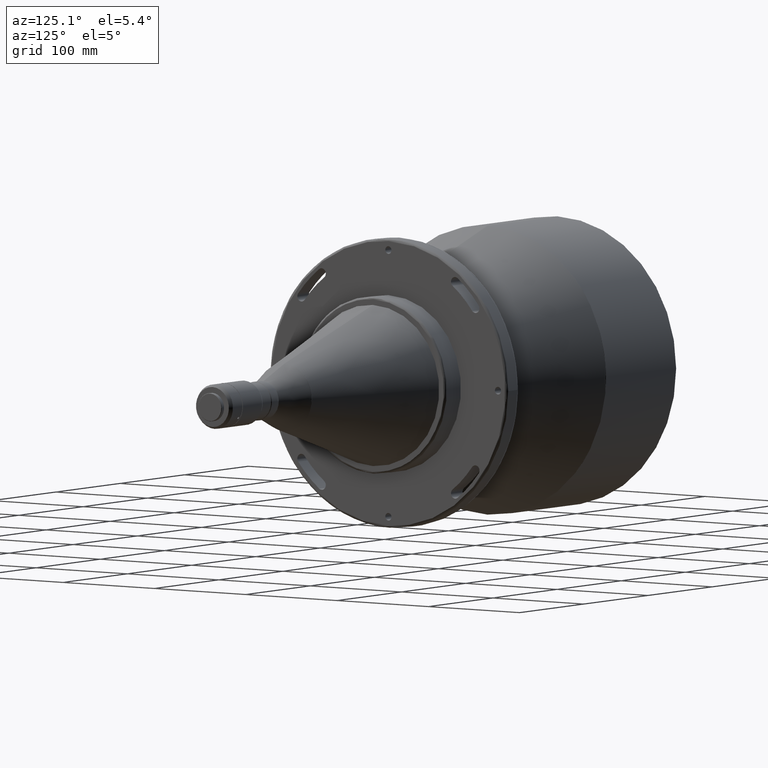
[diagram: clean part render]
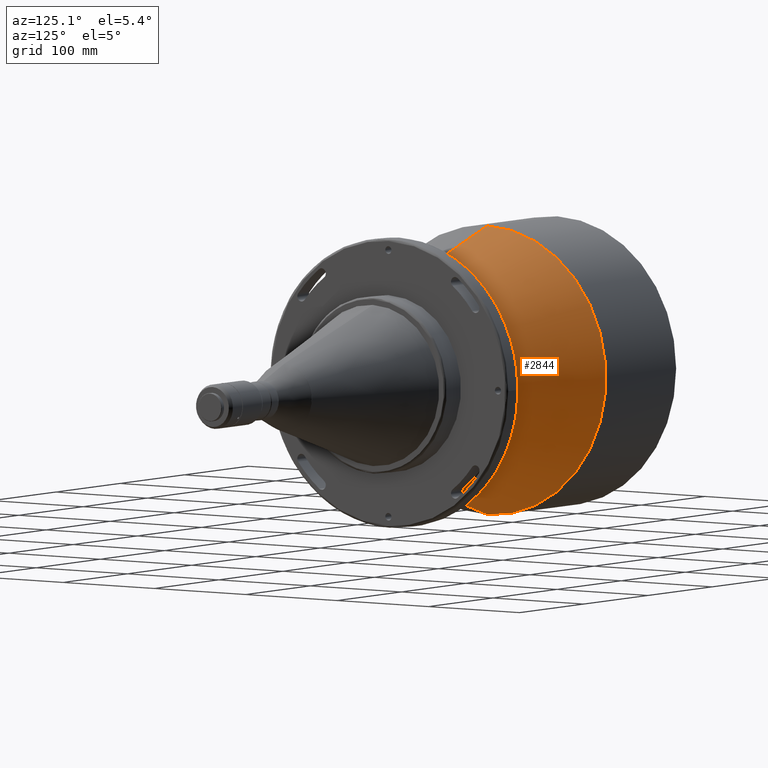
[diagram: same view with one face highlighted and labeled with its STEP entity id]
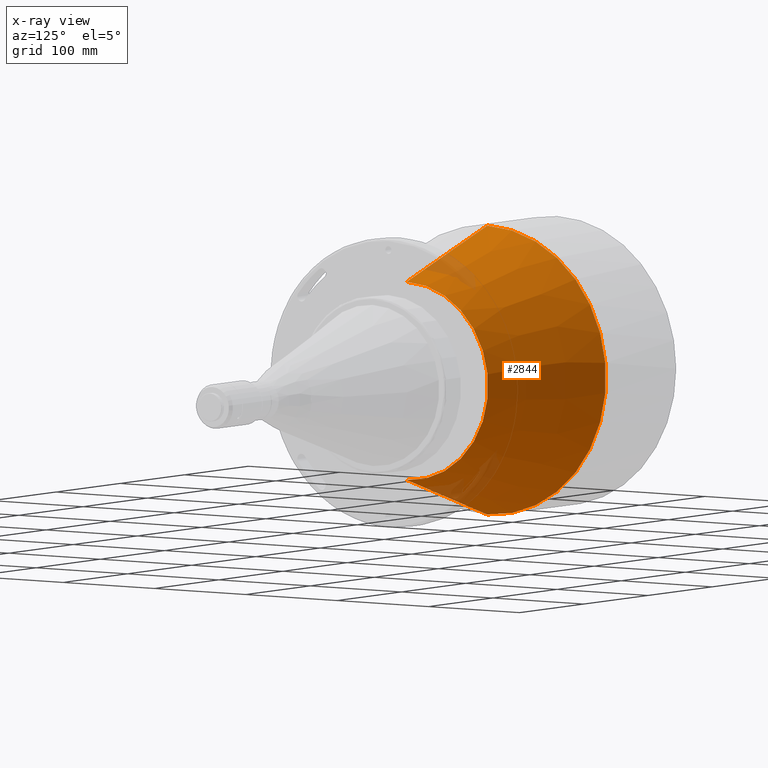
[diagram: x-ray of the same camera — body ghosted, the highlighted face saturated]
A machine part, auxiliary view. The second image highlights one B-rep face of the part: STEP entity #2844.
The next image is the same camera in x-ray: the body ghosted, the highlighted face saturated — about 6% of this face is hidden behind the body in this view.
In plain terms, the highlighted conical surface has half-angle 18 deg.
Its self-contained STEP definition (entity closure, byte-faithful):
#133 = AXIS2_PLACEMENT_3D ( 'NONE', #1319, #2845, #552 ) ;
#155 = VERTEX_POINT ( 'NONE', #2410 ) ;
#339 = VECTOR ( 'NONE', #2035, 1000.000000000000000 ) ;
#376 = DIRECTION ( 'NONE',  ( -0.9510565162952673300, 0.0000000000000000000, 0.3090169943745972900 ) ) ;
#552 = DIRECTION ( 'NONE',  ( 0.0000000000000000000, 0.0000000000000000000, 1.000000000000000000 ) ) ;
#668 = DIRECTION ( 'NONE',  ( -1.000000000000000000, 0.0000000000000000000, 0.0000000000000000000 ) ) ;
#707 = CARTESIAN_POINT ( 'NONE',  ( -35.32213595678278000, 0.0000000000000000000, 0.0000000000000000000 ) ) ;
#752 = EDGE_CURVE ( 'NONE', #785, #1598, #1430, .T. ) ;
#785 = VERTEX_POINT ( 'NONE', #2704 ) ;
#898 = EDGE_LOOP ( 'NONE', ( #923, #2320, #1928, #1627 ) ) ;
#918 = EDGE_CURVE ( 'NONE', #1307, #155, #2067, .T. ) ;
#923 = ORIENTED_EDGE ( 'NONE', *, *, #2579, .T. ) ;
#1059 = CARTESIAN_POINT ( 'NONE',  ( -35.32213595500000700, 0.0000000000000000000, 89.16803578800001200 ) ) ;
#1064 = AXIS2_PLACEMENT_3D ( 'NONE', #1986, #668, #1972 ) ;
#1307 = VERTEX_POINT ( 'NONE', #1738 ) ;
#1319 = CARTESIAN_POINT ( 'NONE',  ( -35.32213595500000700, 0.0000000000000000000, 0.0000000000000000000 ) ) ;
#1430 = LINE ( 'NONE', #1059, #2027 ) ;
#1454 = DIRECTION ( 'NONE',  ( -1.000000000000000000, -3.890908800732188200E-017, 0.0000000000000000000 ) ) ;
#1561 = EDGE_CURVE ( 'NONE', #1598, #155, #2557, .T. ) ;
#1598 = VERTEX_POINT ( 'NONE', #1684 ) ;
#1627 = ORIENTED_EDGE ( 'NONE', *, *, #752, .F. ) ;
#1644 = FACE_OUTER_BOUND ( 'NONE', #898, .T. ) ;
#1684 = CARTESIAN_POINT ( 'NONE',  ( -160.8393674458324900, -5.834388441359496400E-009, 129.9510565161047900 ) ) ;
#1738 = CARTESIAN_POINT ( 'NONE',  ( -35.32213595544570200, -2.743300478114482500E-008, -89.16803578819076400 ) ) ;
#1928 = ORIENTED_EDGE ( 'NONE', *, *, #1561, .F. ) ;
#1972 = DIRECTION ( 'NONE',  ( 0.0000000000000000000, 0.0000000000000000000, 1.000000000000000000 ) ) ;
#1986 = CARTESIAN_POINT ( 'NONE',  ( -160.8393674460000400, 0.0000000000000000000, 0.0000000000000000000 ) ) ;
#2027 = VECTOR ( 'NONE', #376, 1000.000000000000000 ) ;
#2035 = DIRECTION ( 'NONE',  ( -0.9510565162952673300, 3.784366730429862400E-017, -0.3090169943745972900 ) ) ;
#2067 = LINE ( 'NONE', #2824, #339 ) ;
#2320 = ORIENTED_EDGE ( 'NONE', *, *, #918, .T. ) ;
#2410 = CARTESIAN_POINT ( 'NONE',  ( -160.8393674457989600, -1.332670361531058800E-008, -129.9510565161257600 ) ) ;
#2458 = DIRECTION ( 'NONE',  ( 0.0000000000000000000, -1.000000000000000000, 0.0000000000000000000 ) ) ;
#2557 = CIRCLE ( 'NONE', #1064, 129.9510565159999900 ) ;
#2566 = AXIS2_PLACEMENT_3D ( 'NONE', #707, #1454, #2458 ) ;
#2579 = EDGE_CURVE ( 'NONE', #785, #1307, #2631, .T. ) ;
#2631 = CIRCLE ( 'NONE', #2566, 89.16803578876303500 ) ;
#2667 = CONICAL_SURFACE ( 'NONE', #133, 89.16803578800001200, 0.3141592653586111600 ) ;
#2704 = CARTESIAN_POINT ( 'NONE',  ( -35.32213595566855000, -8.006721473267639300E-009, 89.16803578828613300 ) ) ;
#2824 = CARTESIAN_POINT ( 'NONE',  ( -35.32213595500000700, 1.091993496140308500E-014, -89.16803578800001200 ) ) ;
#2844 = ADVANCED_FACE ( 'NONE', ( #1644 ), #2667, .T. ) ;
#2845 = DIRECTION ( 'NONE',  ( -1.000000000000000000, 0.0000000000000000000, 0.0000000000000000000 ) ) ;